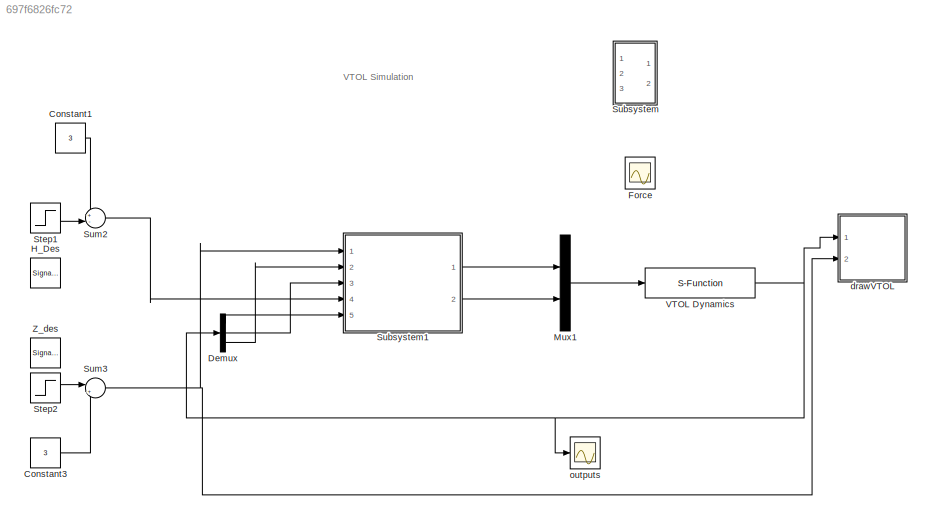
MODEL slx_697f6826fc72
KIND model
CONFIG AbsTol = auto
CONFIG EnableMultiTasking = on
CONFIG FixedStep = auto
CONFIG InitFcn = param
CONFIG MaxStep = auto
CONFIG MinStep = auto
CONFIG RelTol = 1e-3
CONFIG SampleTimeConstraint = Unconstrained
CONFIG Solver = ode45
CONFIG SolverName = ode45
CONFIG StartTime = 0.0
CONFIG StopTime = 300
BLOCK [Constant] Constant1
  Value = 3
BLOCK [Constant] Constant3
  Value = 3
BLOCK [Demux] Demux
  DisplayOption = bar
  Outputs = 3
  Ports = [1, 3]
BLOCK [Scope] Force
  NumInputPorts = 1
  Ports = [1]
  ScopeSpecificationString = Simulink.scopes.TimeScopeBlockCfg('CurrentConfiguration', extmgr.ConfigurationSet(extmgr.Configuration('Core','General UI',true),extmgr.Configuration('Core','Source UI',true),extmgr.Configuration('Sources','WiredSimulink',true,'DataLoggingSaveFormat','StructureWithTime','DataLoggingLimitDataPoints',true,'DataLoggingDecimation','1','DataLoggingDecimateData',true,'DataLoggingVariableName','ScopeData...<+1735ch>
BLOCK [SignalGenerator] H_Des
  Amplitude = 2
  Frequency = .2
  Ports = [0, 1]
  Units = rad/sec
  WaveForm = square
BLOCK [Mux] Mux1
  DisplayOption = bar
  Inputs = 2
  Ports = [2, 1]
BLOCK [Step] Step1
  After = 2
  SampleTime = 0
BLOCK [Step] Step2
  After = 2
  SampleTime = 0
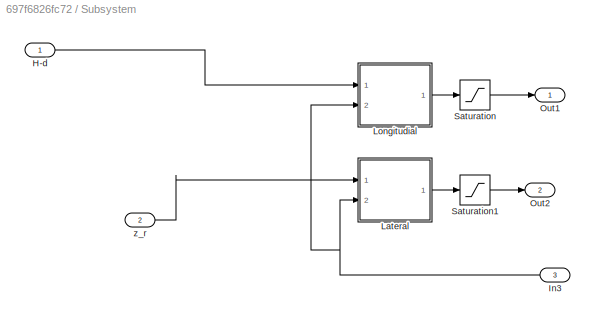
BLOCK [SubSystem] Subsystem
  Ports = [3, 2]
  RequestExecContextInheritance = off
  Variant = off
BLOCK [Inport] Subsystem/H-d 
  IconDisplay = Port number
BLOCK [Inport] Subsystem/In3
  IconDisplay = Port number
  Port = 3
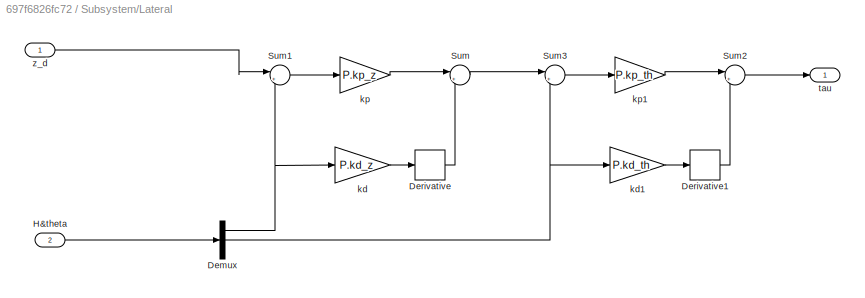
BLOCK [SubSystem] Subsystem/Lateral
  Ports = [2, 1]
  RequestExecContextInheritance = off
  Variant = off
BLOCK [Demux] Subsystem/Lateral/Demux
  DisplayOption = bar
  Outputs = 3
  Ports = [1, 3]
BLOCK [Derivative] Subsystem/Lateral/Derivative
BLOCK [Derivative] Subsystem/Lateral/Derivative1
BLOCK [Inport] Subsystem/Lateral/H&theta
  IconDisplay = Port number
  Port = 2
BLOCK [Sum] Subsystem/Lateral/Sum
  IconShape = round
  InputSameDT = off
  Inputs = |+-
  OutDataTypeStr = Inherit: Inherit via internal rule
  Ports = [2, 1]
  SaturateOnIntegerOverflow = off
BLOCK [Sum] Subsystem/Lateral/Sum1
  IconShape = round
  InputSameDT = off
  Inputs = |+-
  OutDataTypeStr = Inherit: Inherit via internal rule
  Ports = [2, 1]
  SaturateOnIntegerOverflow = off
BLOCK [Sum] Subsystem/Lateral/Sum2
  IconShape = round
  InputSameDT = off
  Inputs = |+-
  OutDataTypeStr = Inherit: Inherit via internal rule
  Ports = [2, 1]
  SaturateOnIntegerOverflow = off
BLOCK [Sum] Subsystem/Lateral/Sum3
  IconShape = round
  InputSameDT = off
  Inputs = |+-
  OutDataTypeStr = Inherit: Inherit via internal rule
  Ports = [2, 1]
  SaturateOnIntegerOverflow = off
BLOCK [Gain] Subsystem/Lateral/kd
  Gain = P.kd_z
  OutDataTypeStr = Inherit: Inherit via internal rule
  ParamDataTypeStr = Inherit: Inherit via internal rule
  SaturateOnIntegerOverflow = off
BLOCK [Gain] Subsystem/Lateral/kd1
  Gain = P.kd_th
  OutDataTypeStr = Inherit: Inherit via internal rule
  ParamDataTypeStr = Inherit: Inherit via internal rule
  SaturateOnIntegerOverflow = off
BLOCK [Gain] Subsystem/Lateral/kp
  Gain = P.kp_z
  OutDataTypeStr = Inherit: Inherit via internal rule
  ParamDataTypeStr = Inherit: Inherit via internal rule
  SaturateOnIntegerOverflow = off
BLOCK [Gain] Subsystem/Lateral/kp1
  Gain = P.kp_th
  OutDataTypeStr = Inherit: Inherit via internal rule
  ParamDataTypeStr = Inherit: Inherit via internal rule
  SaturateOnIntegerOverflow = off
BLOCK [Outport] Subsystem/Lateral/tau
  IconDisplay = Port number
BLOCK [Inport] Subsystem/Lateral/z_d
  IconDisplay = Port number
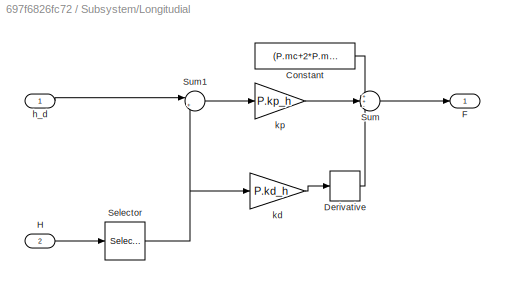
BLOCK [SubSystem] Subsystem/Longitudial
  Ports = [2, 1]
  RequestExecContextInheritance = off
  Variant = off
BLOCK [Constant] Subsystem/Longitudial/Constant
  Value = (P.mc+2*P.mr)*P.g
BLOCK [Derivative] Subsystem/Longitudial/Derivative
BLOCK [Outport] Subsystem/Longitudial/F
  IconDisplay = Port number
BLOCK [Inport] Subsystem/Longitudial/H
  IconDisplay = Port number
  Port = 2
BLOCK [Selector] Subsystem/Longitudial/Selector
  IndexOptions = Index vector (dialog)
  Indices = [3]
  InputPortWidth = 3
  OutputSizes = 1
  Ports = [1, 1]
BLOCK [Sum] Subsystem/Longitudial/Sum
  IconShape = round
  InputSameDT = off
  Inputs = ++-
  OutDataTypeStr = Inherit: Inherit via internal rule
  Ports = [3, 1]
  SaturateOnIntegerOverflow = off
BLOCK [Sum] Subsystem/Longitudial/Sum1
  IconShape = round
  InputSameDT = off
  Inputs = |+-
  OutDataTypeStr = Inherit: Inherit via internal rule
  Ports = [2, 1]
  SaturateOnIntegerOverflow = off
BLOCK [Inport] Subsystem/Longitudial/h_d
  IconDisplay = Port number
BLOCK [Gain] Subsystem/Longitudial/kd
  Gain = P.kd_h
  OutDataTypeStr = Inherit: Inherit via internal rule
  ParamDataTypeStr = Inherit: Inherit via internal rule
  SaturateOnIntegerOverflow = off
BLOCK [Gain] Subsystem/Longitudial/kp
  Gain = P.kp_h
  OutDataTypeStr = Inherit: Inherit via internal rule
  ParamDataTypeStr = Inherit: Inherit via internal rule
  SaturateOnIntegerOverflow = off
BLOCK [Outport] Subsystem/Out1
  IconDisplay = Port number
BLOCK [Outport] Subsystem/Out2
  IconDisplay = Port number
  Port = 2
BLOCK [Saturate] Subsystem/Saturation
  InputPortMap = u0
  LowerLimit = 0
  Ports = [1, 1]
  UpperLimit = 30
BLOCK [Saturate] Subsystem/Saturation1
  InputPortMap = u0
  LowerLimit = -4.5
  Ports = [1, 1]
  UpperLimit = 4.5
BLOCK [Inport] Subsystem/z_r
  IconDisplay = Port number
  Port = 2
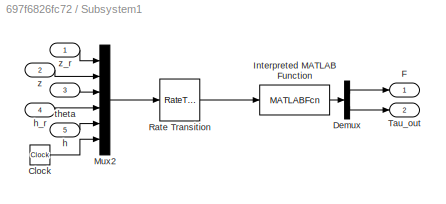
BLOCK [SubSystem] Subsystem1
  Ports = [5, 2]
  RequestExecContextInheritance = off
  Variant = off
BLOCK [Clock] Subsystem1/Clock
BLOCK [Demux] Subsystem1/Demux
  DisplayOption = bar
  Outputs = 2
  Ports = [1, 2]
BLOCK [Outport] Subsystem1/F
  IconDisplay = Port number
BLOCK [MATLABFcn] Subsystem1/Interpreted MATLAB Function
  MATLABFcn = VTOL_ctrl(u,P)
  Output1D = off
  OutputDimensions = 2
  Ports = [1, 1]
BLOCK [Mux] Subsystem1/Mux2
  DisplayOption = bar
  Inputs = 6
  Ports = [6, 1]
BLOCK [RateTransition] Subsystem1/Rate Transition
  OutPortSampleTime = P.Ts
BLOCK [Outport] Subsystem1/Tau_out
  IconDisplay = Port number
  Port = 2
BLOCK [Inport] Subsystem1/h
  IconDisplay = Port number
  Port = 5
BLOCK [Inport] Subsystem1/h_r
  IconDisplay = Port number
  Port = 4
BLOCK [Inport] Subsystem1/theta
  IconDisplay = Port number
  Port = 3
BLOCK [Inport] Subsystem1/z
  IconDisplay = Port number
  Port = 2
BLOCK [Inport] Subsystem1/z_r
  IconDisplay = Port number
BLOCK [Sum] Sum2
  IconShape = round
  InputSameDT = off
  Inputs = +-|
  OutDataTypeStr = Inherit: Inherit via internal rule
  Ports = [2, 1]
  SaturateOnIntegerOverflow = off
BLOCK [Sum] Sum3
  IconShape = round
  InputSameDT = off
  Inputs = |++
  OutDataTypeStr = Inherit: Inherit via internal rule
  Ports = [2, 1]
  SaturateOnIntegerOverflow = off
BLOCK [S-Function] VTOL Dynamics
  EnableBusSupport = off
  FunctionName = VTOL_dynamics
  Parameters = P
  Ports = [1, 1]
  SFcnIsStateOwnerBlock = off
  SFunctionDeploymentMode = off
BLOCK [SignalGenerator] Z_des
  Amplitude = 2.5
  Frequency = .08
  Ports = [0, 1]
  Units = rad/sec
  WaveForm = square
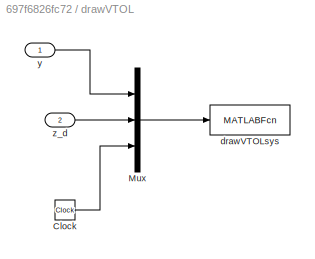
BLOCK [SubSystem] drawVTOL
  Ports = [2]
  RequestExecContextInheritance = off
  Variant = off
BLOCK [Clock] drawVTOL/Clock
BLOCK [Mux] drawVTOL/Mux
  DisplayOption = bar
  Inputs = 3
  Ports = [3, 1]
BLOCK [MATLABFcn] drawVTOL/drawVTOLsys 
  MATLABFcn = drawVTOLsys(u)
  OutputDimensions = 0
  Ports = [1]
  SampleTime = 0.1
BLOCK [Inport] drawVTOL/y
  IconDisplay = Port number
BLOCK [Inport] drawVTOL/z_d 
  IconDisplay = Port number
  Port = 2
BLOCK [Scope] outputs 
  NumInputPorts = 1
  Ports = [1]
  ScopeSpecificationString = Simulink.scopes.TimeScopeBlockCfg('CurrentConfiguration', extmgr.ConfigurationSet(extmgr.Configuration('Core','General UI',true),extmgr.Configuration('Core','Source UI',true),extmgr.Configuration('Sources','WiredSimulink',true,'DataLoggingVariableName','ScopeData1'),extmgr.Configuration('Visuals','Time Domain',true,'SerializedDisplays',{struct('MinYLimReal','-2.23154','MaxYLimReal','17.52881','YLa...<+1472ch>
ANNOTATION (root): VTOL Simulation
LINE Constant1:1 -> Sum2:1
LINE Constant3:1 -> Sum3:2
LINE Demux:1 -> Subsystem1:5
LINE Demux:2 -> Subsystem1:3
LINE Demux:3 -> Subsystem1:2
LINE Mux1:1 -> VTOL Dynamics:1
LINE Step1:1 -> Sum2:2
LINE Step2:1 -> Sum3:1
LINE Subsystem/H-d :1 -> Subsystem/Longitudial:1
NET Subsystem/In3:1 -> Subsystem/Lateral:2, Subsystem/Longitudial:2
NET Subsystem/Lateral/Demux:1 -> Subsystem/Lateral/Sum1:2, Subsystem/Lateral/kd:1
NET Subsystem/Lateral/Demux:2 -> Subsystem/Lateral/Sum3:2, Subsystem/Lateral/kd1:1
LINE Subsystem/Lateral/Derivative1:1 -> Subsystem/Lateral/Sum2:2
LINE Subsystem/Lateral/Derivative:1 -> Subsystem/Lateral/Sum:2
LINE Subsystem/Lateral/H&theta:1 -> Subsystem/Lateral/Demux:1
LINE Subsystem/Lateral/Sum1:1 -> Subsystem/Lateral/kp:1
LINE Subsystem/Lateral/Sum2:1 -> Subsystem/Lateral/tau:1
LINE Subsystem/Lateral/Sum3:1 -> Subsystem/Lateral/kp1:1
LINE Subsystem/Lateral/Sum:1 -> Subsystem/Lateral/Sum3:1
LINE Subsystem/Lateral/kd1:1 -> Subsystem/Lateral/Derivative1:1
LINE Subsystem/Lateral/kd:1 -> Subsystem/Lateral/Derivative:1
LINE Subsystem/Lateral/kp1:1 -> Subsystem/Lateral/Sum2:1
LINE Subsystem/Lateral/kp:1 -> Subsystem/Lateral/Sum:1
LINE Subsystem/Lateral/z_d:1 -> Subsystem/Lateral/Sum1:1
LINE Subsystem/Lateral:1 -> Subsystem/Saturation1:1
LINE Subsystem/Longitudial/Constant:1 -> Subsystem/Longitudial/Sum:1
LINE Subsystem/Longitudial/Derivative:1 -> Subsystem/Longitudial/Sum:3
LINE Subsystem/Longitudial/H:1 -> Subsystem/Longitudial/Selector:1
NET Subsystem/Longitudial/Selector:1 -> Subsystem/Longitudial/Sum1:2, Subsystem/Longitudial/kd:1
LINE Subsystem/Longitudial/Sum1:1 -> Subsystem/Longitudial/kp:1
LINE Subsystem/Longitudial/Sum:1 -> Subsystem/Longitudial/F:1
LINE Subsystem/Longitudial/h_d:1 -> Subsystem/Longitudial/Sum1:1
LINE Subsystem/Longitudial/kd:1 -> Subsystem/Longitudial/Derivative:1
LINE Subsystem/Longitudial/kp:1 -> Subsystem/Longitudial/Sum:2
LINE Subsystem/Longitudial:1 -> Subsystem/Saturation:1
LINE Subsystem/Saturation1:1 -> Subsystem/Out2:1
LINE Subsystem/Saturation:1 -> Subsystem/Out1:1
LINE Subsystem/z_r:1 -> Subsystem/Lateral:1
LINE Subsystem1/Clock:1 -> Subsystem1/Mux2:6
LINE Subsystem1/Demux:1 -> Subsystem1/F:1
LINE Subsystem1/Demux:2 -> Subsystem1/Tau_out:1
LINE Subsystem1/Interpreted MATLAB Function:1 -> Subsystem1/Demux:1
LINE Subsystem1/Mux2:1 -> Subsystem1/Rate Transition:1
LINE Subsystem1/Rate Transition:1 -> Subsystem1/Interpreted MATLAB Function:1
LINE Subsystem1/h:1 -> Subsystem1/Mux2:5
LINE Subsystem1/h_r:1 -> Subsystem1/Mux2:4
LINE Subsystem1/theta:1 -> Subsystem1/Mux2:3
LINE Subsystem1/z:1 -> Subsystem1/Mux2:2
LINE Subsystem1/z_r:1 -> Subsystem1/Mux2:1
LINE Subsystem1:1 -> Mux1:1
LINE Subsystem1:2 -> Mux1:2
LINE Sum2:1 -> Subsystem1:4
NET Sum3:1 -> Subsystem1:1, drawVTOL:2
NET VTOL Dynamics:1 -> Demux:1, drawVTOL:1, outputs :1
LINE drawVTOL/Clock:1 -> drawVTOL/Mux:3
LINE drawVTOL/Mux:1 -> drawVTOL/drawVTOLsys :1
LINE drawVTOL/y:1 -> drawVTOL/Mux:1
LINE drawVTOL/z_d :1 -> drawVTOL/Mux:2
note: NET lines group one-source signal fan-out (src -> all destinations, sorted); 1:1 wires keep LINE
